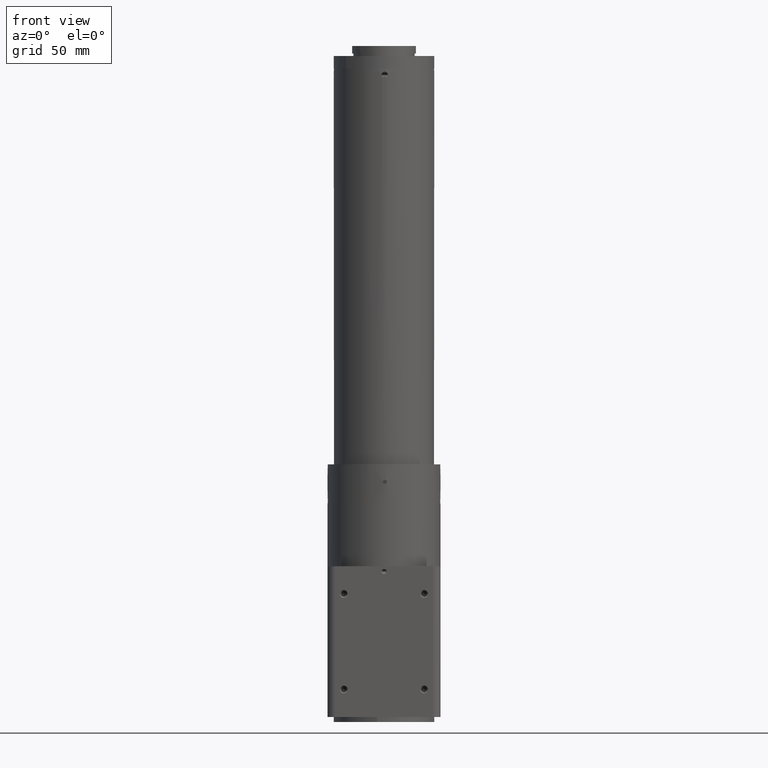
[diagram: clean part render]
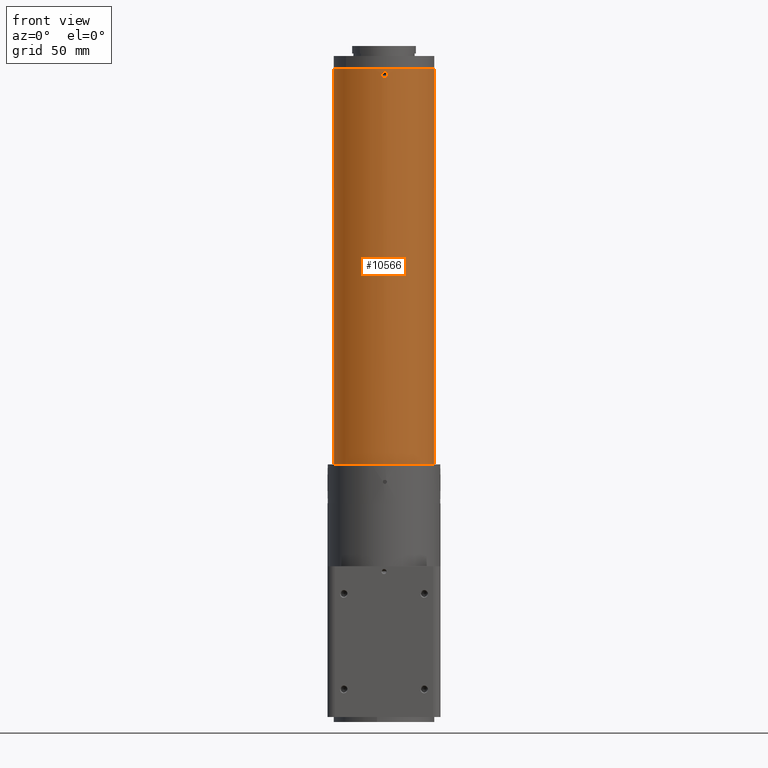
[diagram: same view with one face highlighted and labeled with its STEP entity id]
A machine part, front view. The second image highlights one B-rep face of the part: STEP entity #10566.
In plain terms, the highlighted cylindrical surface (bore or boss wall) has radius 20 mm, axis along (-0, -0, -1).
Its self-contained STEP definition (entity closure, byte-faithful):
#76 = CARTESIAN_POINT ( 'NONE',  ( -20.00055879303667439, 0.02386444734821151215, 254.2822134022968896 ) ) ;
#220 = CARTESIAN_POINT ( 'NONE',  ( 19.97750762813856085, -0.9482557501355939333, 255.3348107188409983 ) ) ;
#254 = CARTESIAN_POINT ( 'NONE',  ( -20.00054847324345531, 0.02622641273531927178, 256.7170210519614102 ) ) ;
#360 = CARTESIAN_POINT ( 'NONE',  ( -19.97750764031513881, 0.9482554936035614279, 255.6651910153359211 ) ) ;
#361 = CARTESIAN_POINT ( 'NONE',  ( -0.7902704461480983822, -19.98447934473301402, 256.1297257707858535 ) ) ;
#408 = EDGE_LOOP ( 'NONE', ( #2228 ) ) ;
#422 = CARTESIAN_POINT ( 'NONE',  ( -20.00018668907439334, -0.1382852740163804106, 256.7498875139634720 ) ) ;
#423 = CARTESIAN_POINT ( 'NONE',  ( 1.518994184388868351, -19.94233182997348308, 255.1728689511972163 ) ) ;
#477 = CARTESIAN_POINT ( 'NONE',  ( -0.9482545591343641833, -19.97750768467087568, 255.6651191458732058 ) ) ;
#563 = EDGE_LOOP ( 'NONE', ( #8224 ) ) ;
#613 = CARTESIAN_POINT ( 'NONE',  ( 0.3275867176751871557, 19.99788195078672715, 256.5919905795099680 ) ) ;
#675 = CARTESIAN_POINT ( 'NONE',  ( 19.98815534403038541, -0.6980712163961062533, 254.7320722110553675 ) ) ;
#707 = CARTESIAN_POINT ( 'NONE',  ( -19.93973358428472409, -1.551458857896939714, 255.4999999999999432 ) ) ;
#735 = CARTESIAN_POINT ( 'NONE',  ( 19.97750762813856440, -0.9482557501354472729, 255.6651892811601101 ) ) ;
#777 = FACE_BOUND ( 'NONE', #408, .T. ) ;
#791 = CARTESIAN_POINT ( 'NONE',  ( 19.97887790122229035, 0.9311631776107035519, 254.4076948662871018 ) ) ;
#940 = CIRCLE ( 'NONE', #2613, 19.99999999999998224 ) ;
#1061 = CARTESIAN_POINT ( 'NONE',  ( -1.518306623810030676, 19.94238333575476574, 255.8291614164136547 ) ) ;
#1167 = CARTESIAN_POINT ( 'NONE',  ( 19.97750762813856440, -0.9482557501355206586, 255.5000000000005116 ) ) ;
#1295 = CARTESIAN_POINT ( 'NONE',  ( 1.393606676167733038, -19.95148537422911161, 256.1297137685233452 ) ) ;
#1299 = EDGE_LOOP ( 'NONE', ( #7836 ) ) ;
#1315 = AXIS2_PLACEMENT_3D ( 'NONE', #10446, #2499, #9569 ) ;
#1320 = FACE_BOUND ( 'NONE', #5586, .T. ) ;
#1346 = CARTESIAN_POINT ( 'NONE',  ( -0.9157278084363007498, -19.97912372049814422, 255.8271290261354807 ) ) ;
#1396 = CARTESIAN_POINT ( 'NONE',  ( -19.93973358428472409, -1.551458857896939714, 255.6651892811595133 ) ) ;
#1397 = CARTESIAN_POINT ( 'NONE',  ( 1.070885319530012980, -19.97164236666934301, 254.5011532203804165 ) ) ;
#1450 = CARTESIAN_POINT ( 'NONE',  ( 0.6312819503139026622, -19.99059975774629550, 254.2831879060773019 ) ) ;
#1468 = CARTESIAN_POINT ( 'NONE',  ( 0.7902685835006169057, 19.98447942066324501, 256.1297292451373551 ) ) ;
#1532 = CARTESIAN_POINT ( 'NONE',  ( 0.4669374932482251994, 19.99488093405724598, 256.4988467796194413 ) ) ;
#1593 = CARTESIAN_POINT ( 'NONE',  ( 19.97890436788732416, 0.9307533531375122848, 256.5926869869709321 ) ) ;
#1653 = CARTESIAN_POINT ( 'NONE',  ( 19.98817670954629833, -0.6972142028943795200, 256.2686229659185528 ) ) ;
#1751 = CARTESIAN_POINT ( 'NONE',  ( -19.98815531894679864, 0.6980719411710543110, 254.7320731150247184 ) ) ;
#1757 = CARTESIAN_POINT ( 'NONE',  ( -1.393608541652403110, 19.95148524162371473, 256.1297102756802246 ) ) ;
#1879 = CARTESIAN_POINT ( 'NONE',  ( -1.070890712760747210, 19.97164207048358620, 254.5011575293049759 ) ) ;
#1934 = CARTESIAN_POINT ( 'NONE',  ( -1.518994599990709959, 19.94233179603914863, 255.1728709738643772 ) ) ;
#1979 = CARTESIAN_POINT ( 'NONE',  ( -19.95148589164937647, -1.393613943280277434, 254.8700076063474285 ) ) ;
#2062 = EDGE_CURVE ( 'NONE', #10503, #10503, #6322, .T. ) ;
#2102 = CARTESIAN_POINT ( 'NONE',  ( -19.98817673402882988, 0.6972134960853570984, 256.2686238487817150 ) ) ;
#2112 = CARTESIAN_POINT ( 'NONE',  ( 0.6292465044721724521, -19.99067166640056925, 256.7175019620650573 ) ) ;
#2163 = CARTESIAN_POINT ( 'NONE',  ( 0.9317028256165317268, -19.97885969423578345, 256.5921396100942502 ) ) ;
#2228 = ORIENTED_EDGE ( 'NONE', *, *, #3499, .T. ) ;
#2266 = B_SPLINE_CURVE_WITH_KNOTS ( 'NONE', 3,
 ( #5031, #735, #6012, #7901, #1653, #8559, #8735, #10526, #7852, #6939, #9546, #1593, #2528, #6131, #4150, #7682, #4269, #5081, #9600, #3396, #9673, #11217, #791, #10302, #3272, #6820, #5962, #9497, #8613, #675, #4203, #10595, #220, #10696 ),
 .UNSPECIFIED., .T., .F.,
 ( 4, 2, 2, 2, 2, 2, 2, 2, 2, 2, 2, 2, 2, 2, 2, 2, 4 ),
 ( 0.000000000000000000, 0.0004885246901090067786, 0.0009770493802180135572, 0.001465574070327020336, 0.001954098760436027114, 0.002442623450545034110, 0.002931148140654040671, 0.003419672830763047233, 0.003908197520872054229, 0.004396722210981061224, 0.004885246901090068219, 0.005373771591199074348, 0.005862296281308081343, 0.006350820971417088338, 0.006839345661526094466, 0.007327870351635101462, 0.007816395041744108457 ),
 .UNSPECIFIED. ) ;
#2277 = CARTESIAN_POINT ( 'NONE',  ( -19.97178507839992179, -1.068390500918480868, 256.5010978080255200 ) ) ;
#2327 = CARTESIAN_POINT ( 'NONE',  ( -0.6974436113532554993, -19.98816815816720904, 256.2683090614492016 ) ) ;
#2404 = CARTESIAN_POINT ( 'NONE',  ( 0.9157273919988133670, 19.97912374185924378, 255.8271310488026700 ) ) ;
#2499 = DIRECTION ( 'NONE',  ( -3.469446951954128797E-18, -4.778564104406944837E-32, -1.000000000000000000 ) ) ;
#2514 = CARTESIAN_POINT ( 'NONE',  ( 0.02492534571630578011, 20.00055708135055710, 254.2824980379349427 ) ) ;
#2528 = CARTESIAN_POINT ( 'NONE',  ( 19.97178504406660693, 1.068391147000792740, 256.5010973431052435 ) ) ;
#2613 = AXIS2_PLACEMENT_3D ( 'NONE', #4845, #10513, #4252 ) ;
#2737 = CARTESIAN_POINT ( 'NONE',  ( -1.551457669147478846, 19.93973367677829955, 255.3348808541266521 ) ) ;
#2862 = CARTESIAN_POINT ( 'NONE',  ( -0.9316956843617987261, 19.97885227737466352, 254.4080135107161880 ) ) ;
#3031 = CARTESIAN_POINT ( 'NONE',  ( 0.3021923508306135209, -19.99771686425975403, 256.7499999999999432 ) ) ;
#3060 = EDGE_CURVE ( 'NONE', #7878, #7878, #6215, .T. ) ;
#3076 = CARTESIAN_POINT ( 'NONE',  ( 1.551457669135645645, -19.93973367677921260, 255.3348798542973555 ) ) ;
#3175 = FACE_BOUND ( 'NONE', #1299, .T. ) ;
#3247 = CARTESIAN_POINT ( 'NONE',  ( 0.3021923508306135209, -19.99771686425975403, 256.7499999999999432 ) ) ;
#3272 = CARTESIAN_POINT ( 'NONE',  ( 19.99523298029900076, 0.4660992151917203175, 254.2501124860363575 ) ) ;
#3396 = CARTESIAN_POINT ( 'NONE',  ( 19.95148593786577962, 1.393613286370308568, 254.8700065139176729 ) ) ;
#3428 = CARTESIAN_POINT ( 'NONE',  ( 0.6974406364757597121, 19.98816826896149834, 256.2683131282683462 ) ) ;
#3484 = CARTESIAN_POINT ( 'NONE',  ( -1.301083356496007370, 19.95796773245302447, 254.7316909385507415 ) ) ;
#3499 = EDGE_CURVE ( 'NONE', #5000, #5000, #11440, .T. ) ;
#3544 = CARTESIAN_POINT ( 'NONE',  ( -19.97166507363135679, -1.070471860190168600, 254.5008228148359422 ) ) ;
#3595 = CARTESIAN_POINT ( 'NONE',  ( -19.97912895828570257, 0.9156228585447140356, 255.1724029819768020 ) ) ;
#3697 = AXIS2_PLACEMENT_3D ( 'NONE', #9320, #10996, #7635 ) ;
#3774 = CARTESIAN_POINT ( 'NONE',  ( -19.99070544205716615, -0.6281858283738751547, 256.7177866592992359 ) ) ;
#3946 = CARTESIAN_POINT ( 'NONE',  ( -19.99489115258879224, 0.4665228890645239934, 256.4991776558284187 ) ) ;
#3992 = VERTEX_POINT ( 'NONE', #1167 ) ;
#4150 = CARTESIAN_POINT ( 'NONE',  ( 19.95150246416545059, 1.393380268735216143, 256.1304186982121678 ) ) ;
#4203 = CARTESIAN_POINT ( 'NONE',  ( 19.98449469270236278, -0.7898930583332660627, 254.8695801686577340 ) ) ;
#4252 = DIRECTION ( 'NONE',  ( -0.01510961754153024479, 0.9998858432129884566, 0.000000000000000000 ) ) ;
#4269 = CARTESIAN_POINT ( 'NONE',  ( 19.93973356436262989, 1.551459113940914847, 255.6651871361868018 ) ) ;
#4586 = CARTESIAN_POINT ( 'NONE',  ( -19.93973358428471698, -1.551458857896939492, 255.3348107188403446 ) ) ;
#4652 = CARTESIAN_POINT ( 'NONE',  ( -20.00017472489269466, -0.1400051450380521978, 254.2498881055442155 ) ) ;
#4707 = CARTESIAN_POINT ( 'NONE',  ( -19.95150251165059174, -1.393379594314300363, 256.1304198313427491 ) ) ;
#4718 = CARTESIAN_POINT ( 'NONE',  ( 0.4672853312361963662, -19.99522208767135112, 256.7500000000000000 ) ) ;
#4756 = CARTESIAN_POINT ( 'NONE',  ( -19.99789135060805378, 0.3270605212517394000, 256.5923051337125571 ) ) ;
#4757 = CARTESIAN_POINT ( 'NONE',  ( 1.393754486559864114, -19.95147589979686131, 254.8702707548626165 ) ) ;
#4768 = EDGE_LOOP ( 'NONE', ( #7447 ) ) ;
#4845 = CARTESIAN_POINT ( 'NONE',  ( 5.937206557681494334E-15, 1.123936055439437331E-15, 100.4999999999999716 ) ) ;
#4883 = CARTESIAN_POINT ( 'NONE',  ( 0.1370993704250304257, -20.00021164084815339, 256.7499999999999432 ) ) ;
#4912 = FACE_BOUND ( 'NONE', #9539, .T. ) ;
#4938 = CARTESIAN_POINT ( 'NONE',  ( -0.9150385890732575245, -19.97915444894007919, 255.1708385835862600 ) ) ;
#4953 = CARTESIAN_POINT ( 'NONE',  ( 0.9482545591224873505, 19.97750768467143345, 255.6651201457027014 ) ) ;
#4995 = CARTESIAN_POINT ( 'NONE',  ( 1.301080386324681593, -19.95796793308497996, 254.7316868717317107 ) ) ;
#5000 = VERTEX_POINT ( 'NONE', #6859 ) ;
#5031 = CARTESIAN_POINT ( 'NONE',  ( 19.97750762813856085, -0.9482557501355205476, 255.5000000000005684 ) ) ;
#5069 = CARTESIAN_POINT ( 'NONE',  ( 0.9150381885142091498, 19.97915446958398888, 255.1708366167443955 ) ) ;
#5081 = CARTESIAN_POINT ( 'NONE',  ( 19.93973360420709184, 1.551458601849972085, 255.3348089846633684 ) ) ;
#5098 = VERTEX_POINT ( 'NONE', #10439 ) ;
#5290 = CARTESIAN_POINT ( 'NONE',  ( -0.3021923508302647443, 19.99771686425975403, 254.2499999999999716 ) ) ;
#5422 = CARTESIAN_POINT ( 'NONE',  ( -0.4672853312358472566, 19.99522208767135822, 254.2500000000000284 ) ) ;
#5522 = CARTESIAN_POINT ( 'NONE',  ( -19.93973358428472054, -1.551458857896939492, 255.4999999999999432 ) ) ;
#5586 = EDGE_LOOP ( 'NONE', ( #7749 ) ) ;
#5651 = CARTESIAN_POINT ( 'NONE',  ( 1.070194912906365037, -19.97167983627320709, 256.4993784018232645 ) ) ;
#5658 = EDGE_CURVE ( 'NONE', #3992, #3992, #2266, .T. ) ;
#5792 = FACE_OUTER_BOUND ( 'NONE', #563, .T. ) ;
#5815 = CARTESIAN_POINT ( 'NONE',  ( -19.98448518767414228, 0.7901271444751026829, 256.1299934860817302 ) ) ;
#5867 = CARTESIAN_POINT ( 'NONE',  ( -0.7901224229611312211, -19.98448434838460486, 254.8702897243194627 ) ) ;
#5962 = CARTESIAN_POINT ( 'NONE',  ( 20.00055879242384549, -0.02386413336607653979, 254.2822133407009346 ) ) ;
#6012 = CARTESIAN_POINT ( 'NONE',  ( 19.97912529459083331, -0.9156973138712860560, 255.8272798971261750 ) ) ;
#6112 = CARTESIAN_POINT ( 'NONE',  ( 0.7901205543215211735, 19.98448442456238183, 254.8702862314765696 ) ) ;
#6120 = EDGE_CURVE ( 'NONE', #5098, #5098, #8211, .T. ) ;
#6131 = CARTESIAN_POINT ( 'NONE',  ( 19.95793591361608321, 1.301711011471279322, 256.2679268849746563 ) ) ;
#6174 = CARTESIAN_POINT ( 'NONE',  ( 0.02696203494761357025, 20.00054670812449942, 256.7168120939227265 ) ) ;
#6178 = VERTEX_POINT ( 'NONE', #9713 ) ;
#6215 = B_SPLINE_CURVE_WITH_KNOTS ( 'NONE', 3,
 ( #5522, #4586, #7943, #1979, #9052, #3544, #8118, #7263, #6391, #4652, #76, #8184, #9705, #1751, #8813, #3595, #9343, #360, #7435, #5815, #2102, #3946, #4756, #254, #422, #6511, #3774, #10902, #2277, #7489, #4707, #10224, #1396, #9114 ),
 .UNSPECIFIED., .T., .F.,
 ( 4, 2, 2, 2, 2, 2, 2, 2, 2, 2, 2, 2, 2, 2, 2, 2, 4 ),
 ( 0.000000000000000000, 0.0004885246901090051523, 0.0009770493802180103046, 0.001465574070327015348, 0.001954098760436020609, 0.002442623450545025870, 0.002931148140654030697, 0.003419672830763035958, 0.003908197520872041218, 0.004396722210981046479, 0.004885246901090051740, 0.005373771591199057000, 0.005862296281308061394, 0.006350820971417066654, 0.006839345661526071915, 0.007327870351635077176, 0.007816395041744082436 ),
 .UNSPECIFIED. ) ;
#6279 = CARTESIAN_POINT ( 'NONE',  ( -0.6312914871684309759, 19.99059944643095932, 254.2831906183970432 ) ) ;
#6322 = CIRCLE ( 'NONE', #1315, 19.99999999999998224 ) ;
#6391 = CARTESIAN_POINT ( 'NONE',  ( -19.99523297788134713, -0.4660993747265996801, 254.2501124861460369 ) ) ;
#6396 = CARTESIAN_POINT ( 'NONE',  ( -0.9317095797806286273, 19.97885936800105000, 256.5921355445095742 ) ) ;
#6511 = CARTESIAN_POINT ( 'NONE',  ( -19.99527299123771229, -0.4643796084219864451, 256.7501118943460483 ) ) ;
#6619 = CARTESIAN_POINT ( 'NONE',  ( -0.3276072339294053837, -19.99788933581980288, 254.4078644554903406 ) ) ;
#6653 = CYLINDRICAL_SURFACE ( 'NONE', #3697, 19.99999999999998224 ) ;
#6790 = CARTESIAN_POINT ( 'NONE',  ( -0.3275935591042195560, -19.99788182857000507, 256.5919864892837836 ) ) ;
#6820 = CARTESIAN_POINT ( 'NONE',  ( 20.00017472247506234, 0.1400053045737099655, 254.2498881056539517 ) ) ;
#6859 = CARTESIAN_POINT ( 'NONE',  ( 0.3021923508306135209, -19.99771686425975048, 256.7499999999999432 ) ) ;
#6939 = CARTESIAN_POINT ( 'NONE',  ( 19.99527298883375437, 0.4643797679589666827, 256.7501118944556424 ) ) ;
#7038 = CARTESIAN_POINT ( 'NONE',  ( -0.1371126383272184557, 20.00021153940599206, 256.7500015846774772 ) ) ;
#7263 = CARTESIAN_POINT ( 'NONE',  ( -19.99062374036255463, -0.6305470352712015947, 254.2829790125493616 ) ) ;
#7267 = CARTESIAN_POINT ( 'NONE',  ( -0.4672960556542033461, 19.99522182655014646, 256.7499984152073012 ) ) ;
#7435 = CARTESIAN_POINT ( 'NONE',  ( -19.97912531544439574, 0.9156968660929412085, 255.8272814704256177 ) ) ;
#7439 = CARTESIAN_POINT ( 'NONE',  ( -0.4662517350829317175, -19.99489739057215587, 254.5006259659966474 ) ) ;
#7447 = ORIENTED_EDGE ( 'NONE', *, *, #2062, .T. ) ;
#7489 = CARTESIAN_POINT ( 'NONE',  ( -19.95793596058788566, -1.301710287784455078, 256.2679277889451441 ) ) ;
#7490 = CARTESIAN_POINT ( 'NONE',  ( 1.518306224057626164, -19.94238336849247517, 255.8291633832554055 ) ) ;
#7635 = DIRECTION ( 'NONE',  ( -0.01510961754153024479, 0.9998858432129884566, 0.000000000000000000 ) ) ;
#7662 = CARTESIAN_POINT ( 'NONE',  ( -0.3021923508305981443, 19.99771686425975048, 257.9999999999999432 ) ) ;
#7682 = CARTESIAN_POINT ( 'NONE',  ( 19.94234020257851370, 1.518889856283699658, 255.8275970180224306 ) ) ;
#7749 = ORIENTED_EDGE ( 'NONE', *, *, #5658, .T. ) ;
#7836 = ORIENTED_EDGE ( 'NONE', *, *, #6120, .T. ) ;
#7838 = CARTESIAN_POINT ( 'NONE',  ( 0.4662462696915927185, 19.99489752537410325, 254.5006215981767070 ) ) ;
#7852 = CARTESIAN_POINT ( 'NONE',  ( 20.00018669147834061, 0.1382851144823842304, 256.7498875138539347 ) ) ;
#7878 = VERTEX_POINT ( 'NONE', #707 ) ;
#7888 = CARTESIAN_POINT ( 'NONE',  ( -1.551460046581165431, 19.93973349179634980, 255.6651011279207353 ) ) ;
#7901 = CARTESIAN_POINT ( 'NONE',  ( 19.98448516132793529, -0.7901278024810577394, 256.1299923936527989 ) ) ;
#7943 = CARTESIAN_POINT ( 'NONE',  ( -19.94233429083028142, -1.518964166912446956, 255.1727201028742229 ) ) ;
#8010 = CARTESIAN_POINT ( 'NONE',  ( -1.070200371729158384, 19.97167953639172211, 256.4993740340031536 ) ) ;
#8118 = CARTESIAN_POINT ( 'NONE',  ( -19.97887787584331321, -0.9311637420857734604, 254.4076951678651994 ) ) ;
#8184 = CARTESIAN_POINT ( 'NONE',  ( -19.99790542202007160, 0.3266500841928142718, 254.4073130130287552 ) ) ;
#8211 = B_SPLINE_CURVE_WITH_KNOTS ( 'NONE', 3,
 ( #10345, #10461, #2514, #10289, #7838, #9413, #6112, #5069, #11373, #4953, #2404, #1468, #3428, #1532, #613, #6174, #7038, #7267, #10804, #6396, #8010, #9762, #1757, #1061, #7888, #2737, #1934, #9824, #3484, #1879, #2862, #6279, #5422, #5290 ),
 .UNSPECIFIED., .T., .F.,
 ( 4, 2, 2, 2, 2, 2, 2, 2, 2, 2, 2, 2, 2, 2, 2, 2, 4 ),
 ( 0.000000000000000000, 0.0004882956914901922813, 0.0009765913829803845626, 0.001464887074470576844, 0.001953182765960769125, 0.002441478457450961623, 0.002929774148941153688, 0.003418069840431345752, 0.003906365531921538251, 0.004394661223411730315, 0.004882956914901923247, 0.005371252606392114444, 0.005859548297882305641, 0.006347843989372496838, 0.006836139680862688035, 0.007324435372352880100, 0.007812731063843071297 ),
 .UNSPECIFIED. ) ;
#8224 = ORIENTED_EDGE ( 'NONE', *, *, #11293, .T. ) ;
#8285 = CARTESIAN_POINT ( 'NONE',  ( 0.1370886430135855316, -20.00021170389289082, 254.2500015847926136 ) ) ;
#8355 = CARTESIAN_POINT ( 'NONE',  ( -0.9482569410718720837, -19.97750757160943635, 255.3348988720792079 ) ) ;
#8407 = CARTESIAN_POINT ( 'NONE',  ( 0.4672720663267443952, -19.99522238717559475, 254.2499984153222954 ) ) ;
#8559 = CARTESIAN_POINT ( 'NONE',  ( 19.99489113765259773, -0.4665235365850158300, 256.4991771851641715 ) ) ;
#8613 = CARTESIAN_POINT ( 'NONE',  ( 19.99494819772184329, -0.4644395016268039744, 254.4989021919746790 ) ) ;
#8735 = CARTESIAN_POINT ( 'NONE',  ( 19.99789134229677146, -0.3270610862349608294, 256.5923048321349142 ) ) ;
#8813 = CARTESIAN_POINT ( 'NONE',  ( -19.98449466561705989, 0.7898937338804211672, 254.8695813017872638 ) ) ;
#9052 = CARTESIAN_POINT ( 'NONE',  ( -19.95798321168423684, -1.300854311172586320, 254.7313770340818735 ) ) ;
#9114 = CARTESIAN_POINT ( 'NONE',  ( -19.93973358428472054, -1.551458857896939492, 255.4999999999999432 ) ) ;
#9175 = CARTESIAN_POINT ( 'NONE',  ( 1.300550030013409852, -19.95800296256227924, 256.2690032196597940 ) ) ;
#9294 = CARTESIAN_POINT ( 'NONE',  ( -0.02697157685439064909, -20.00054668511488032, 256.7168093816028431 ) ) ;
#9320 = CARTESIAN_POINT ( 'NONE',  ( 6.193463811866609349E-15, 1.123936055439440684E-15, 174.3611247653697660 ) ) ;
#9343 = CARTESIAN_POINT ( 'NONE',  ( -19.97750761596211078, 0.9482560066644677432, 255.3348128638123740 ) ) ;
#9344 = CARTESIAN_POINT ( 'NONE',  ( -0.02493507971868673401, -20.00055705797260330, 254.2825008043133721 ) ) ;
#9413 = CARTESIAN_POINT ( 'NONE',  ( 0.6969094638826769383, 19.98818725731183221, 254.7309967803400639 ) ) ;
#9497 = CARTESIAN_POINT ( 'NONE',  ( 19.99790543042157154, -0.3266495093822228690, 254.4073127074094600 ) ) ;
#9506 = ORIENTED_EDGE ( 'NONE', *, *, #3060, .T. ) ;
#9539 = EDGE_LOOP ( 'NONE', ( #9506 ) ) ;
#9546 = CARTESIAN_POINT ( 'NONE',  ( 19.99070543318248738, 0.6281861422322110311, 256.7177865977028546 ) ) ;
#9569 = DIRECTION ( 'NONE',  ( -0.01510961754153024479, 0.9998858432129884566, 0.000000000000000000 ) ) ;
#9586 = FACE_OUTER_BOUND ( 'NONE', #4768, .T. ) ;
#9600 = CARTESIAN_POINT ( 'NONE',  ( 19.94233432520436367, 1.518963719968383419, 255.1727185295737854 ) ) ;
#9673 = CARTESIAN_POINT ( 'NONE',  ( 19.95798325751244917, 1.300853605425382753, 254.7313761512175461 ) ) ;
#9705 = CARTESIAN_POINT ( 'NONE',  ( -19.99494818292608755, 0.4644401484506099353, 254.4989026568944439 ) ) ;
#9713 = CARTESIAN_POINT ( 'NONE',  ( -0.3021923508305986994, 19.99771686425975048, 100.4999999999999716 ) ) ;
#9762 = CARTESIAN_POINT ( 'NONE',  ( -1.300552940304154248, 19.95800276554352592, 256.2689992175974680 ) ) ;
#9824 = CARTESIAN_POINT ( 'NONE',  ( -1.393756346062475338, 19.95147576761993591, 254.8702742292138339 ) ) ;
#10224 = CARTESIAN_POINT ( 'NONE',  ( -19.94234023577778103, -1.518889425445519636, 255.8275985515874424 ) ) ;
#10276 = CARTESIAN_POINT ( 'NONE',  ( -0.6969123787975695095, -19.98818714831977061, 254.7310007824023614 ) ) ;
#10289 = CARTESIAN_POINT ( 'NONE',  ( 0.3276004729919341774, 19.99788945782320937, 254.4078603899055793 ) ) ;
#10302 = CARTESIAN_POINT ( 'NONE',  ( 19.99062374946218412, 0.6305467173216361410, 254.2829789480383624 ) ) ;
#10345 = CARTESIAN_POINT ( 'NONE',  ( -0.3021923508302647443, 19.99771686425975403, 254.2499999999999716 ) ) ;
#10439 = CARTESIAN_POINT ( 'NONE',  ( -0.3021923508302648553, 19.99771686425975403, 254.2499999999999716 ) ) ;
#10446 = CARTESIAN_POINT ( 'NONE',  ( 6.483644452614269032E-15, 1.123936055439444826E-15, 257.9999999999999432 ) ) ;
#10461 = CARTESIAN_POINT ( 'NONE',  ( -0.1370993704246819822, 20.00021164084814629, 254.2499999999999147 ) ) ;
#10503 = VERTEX_POINT ( 'NONE', #7662 ) ;
#10513 = DIRECTION ( 'NONE',  ( 3.469446951954128797E-18, 4.778564104406944837E-32, 1.000000000000000000 ) ) ;
#10526 = CARTESIAN_POINT ( 'NONE',  ( 20.00054847375509937, -0.02622673081359900085, 256.7170209874504962 ) ) ;
#10566 = ADVANCED_FACE ( 'NONE', ( #3175, #777, #5792, #9586, #1320, #4912 ), #6653, .T. ) ;
#10595 = CARTESIAN_POINT ( 'NONE',  ( 19.97912897845170832, -0.9156224269004277216, 255.1724014484129555 ) ) ;
#10696 = CARTESIAN_POINT ( 'NONE',  ( 19.97750762813856085, -0.9482557501355205476, 255.5000000000005684 ) ) ;
#10804 = CARTESIAN_POINT ( 'NONE',  ( -0.6292562333237281536, 19.99067134891277320, 256.7174991956864574 ) ) ;
#10902 = CARTESIAN_POINT ( 'NONE',  ( -19.97890439365335169, -0.9307527788422660375, 256.5926872925907674 ) ) ;
#10966 = CARTESIAN_POINT ( 'NONE',  ( -0.4669428929660124350, -19.99488080096741527, 256.4988424706950241 ) ) ;
#10996 = DIRECTION ( 'NONE',  ( -3.469446951954128797E-18, -4.778564104406944837E-32, -1.000000000000000000 ) ) ;
#11019 = CARTESIAN_POINT ( 'NONE',  ( 1.551460046593309050, -19.93973349179540122, 255.6651021276773577 ) ) ;
#11192 = CARTESIAN_POINT ( 'NONE',  ( 0.9316888497495732224, -19.97885260625472270, 254.4080094204900888 ) ) ;
#11217 = CARTESIAN_POINT ( 'NONE',  ( 19.97166510812616025, 1.070471213415782996, 254.5008223441712119 ) ) ;
#11293 = EDGE_CURVE ( 'NONE', #6178, #6178, #940, .T. ) ;
#11373 = CARTESIAN_POINT ( 'NONE',  ( 0.9482569410840466784, 19.97750757160884660, 255.3348978723226708 ) ) ;
#11440 = B_SPLINE_CURVE_WITH_KNOTS ( 'NONE', 3,
 ( #3031, #4718, #2112, #2163, #5651, #9175, #1295, #7490, #11019, #3076, #423, #4757, #4995, #1397, #11192, #1450, #8407, #8285, #9344, #6619, #7439, #10276, #5867, #4938, #8355, #477, #1346, #361, #2327, #10966, #6790, #9294, #4883, #3247 ),
 .UNSPECIFIED., .T., .F.,
 ( 4, 2, 2, 2, 2, 2, 2, 2, 2, 2, 2, 2, 2, 2, 2, 2, 4 ),
 ( 0.000000000000000000, 0.0004882956914901885950, 0.0009765913829803771901, 0.001464887074470565785, 0.001953182765960754380, 0.002441478457450942975, 0.002929774148941131570, 0.003418069840431320165, 0.003906365531921509628, 0.004394661223411699090, 0.004882956914901886818, 0.005371252606392076280, 0.005859548297882264875, 0.006347843989372453470, 0.006836139680862641198, 0.007324435372352831528, 0.007812731063843020990 ),
 .UNSPECIFIED. ) ;